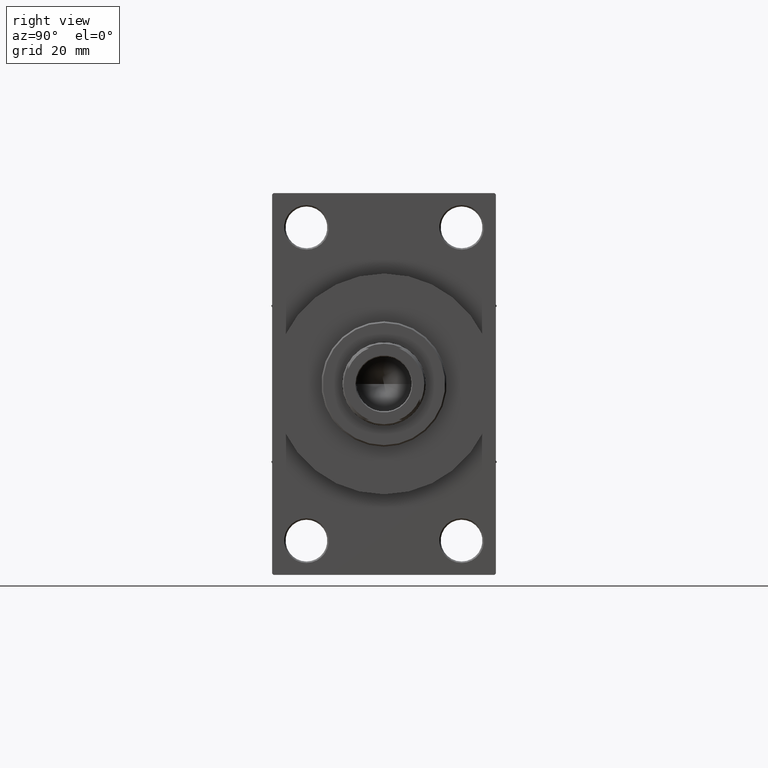
[diagram: clean part render]
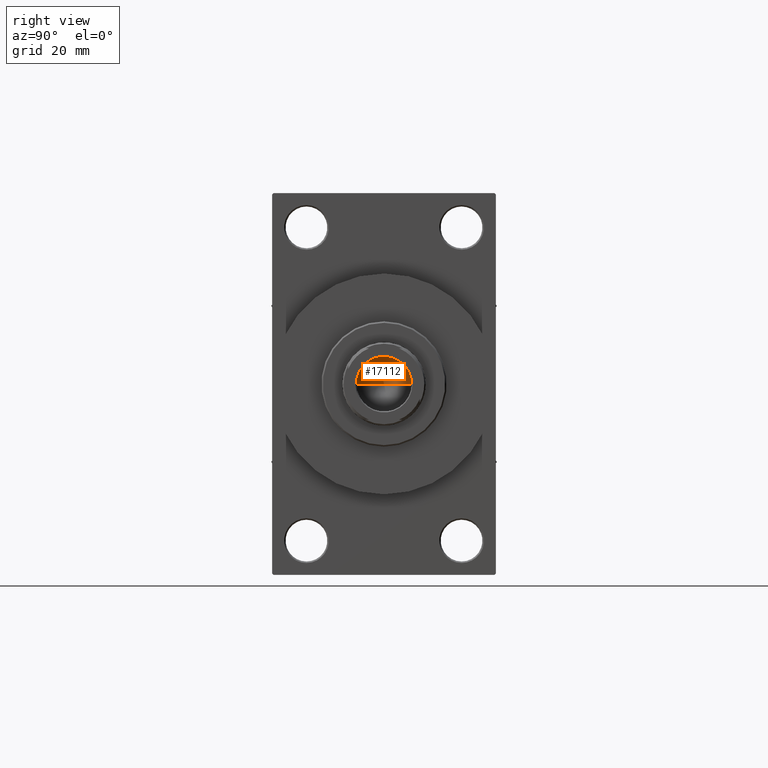
[diagram: same view with one face highlighted and labeled with its STEP entity id]
A machine part, right view. The second image highlights one B-rep face of the part: STEP entity #17112.
In plain terms, the highlighted conical surface has half-angle 59 deg.
Its self-contained STEP definition (entity closure, byte-faithful):
#1351 = CARTESIAN_POINT ( 'NONE',  ( -9.249999999999992895, 1.132798289211300712E-15, 107.0000000000000142 ) ) ;
#1809 = VERTEX_POINT ( 'NONE', #44751 ) ;
#2831 = CARTESIAN_POINT ( 'NONE',  ( 0.000000000000000000, 0.000000000000000000, 107.0000000000000142 ) ) ;
#4941 = LINE ( 'NONE', #1351, #17944 ) ;
#5274 = AXIS2_PLACEMENT_3D ( 'NONE', #2831, #31483, #5683 ) ;
#5683 = DIRECTION ( 'NONE',  ( 1.000000000000000000, 0.000000000000000000, 0.000000000000000000 ) ) ;
#8425 = VERTEX_POINT ( 'NONE', #12445 ) ;
#9953 = CARTESIAN_POINT ( 'NONE',  ( 9.249999999999992895, 0.000000000000000000, 107.0000000000000142 ) ) ;
#10556 = CIRCLE ( 'NONE', #25040, 9.249999999999992895 ) ;
#12445 = CARTESIAN_POINT ( 'NONE',  ( -9.249999999999992895, 1.132798289211300712E-15, 107.0000000000000142 ) ) ;
#13195 = ORIENTED_EDGE ( 'NONE', *, *, #16223, .F. ) ;
#16223 = EDGE_CURVE ( 'NONE', #41187, #1809, #46025, .T. ) ;
#16914 = FACE_OUTER_BOUND ( 'NONE', #33683, .T. ) ;
#17112 = ADVANCED_FACE ( 'NONE', ( #16914 ), #46413, .F. ) ;
#17944 = VECTOR ( 'NONE', #26894, 1000.000000000000000 ) ;
#18262 = CARTESIAN_POINT ( 'NONE',  ( -9.769621978240258809E-15, 0.000000000000000000, 101.4420392739950785 ) ) ;
#20501 = EDGE_CURVE ( 'NONE', #8425, #1809, #10556, .T. ) ;
#24024 = CARTESIAN_POINT ( 'NONE',  ( 0.000000000000000000, 0.000000000000000000, 107.0000000000000142 ) ) ;
#24525 = DIRECTION ( 'NONE',  ( 0.8571673007021117785, 0.000000000000000000, 0.5150380749100550437 ) ) ;
#25040 = AXIS2_PLACEMENT_3D ( 'NONE', #24024, #28081, #35707 ) ;
#26894 = DIRECTION ( 'NONE',  ( -0.8571673007021117785, 1.049727191138617956E-16, 0.5150380749100550437 ) ) ;
#28081 = DIRECTION ( 'NONE',  ( -0.000000000000000000, -0.000000000000000000, 1.000000000000000000 ) ) ;
#30948 = ORIENTED_EDGE ( 'NONE', *, *, #40144, .T. ) ;
#31483 = DIRECTION ( 'NONE',  ( -0.000000000000000000, -0.000000000000000000, 1.000000000000000000 ) ) ;
#32663 = VECTOR ( 'NONE', #24525, 1000.000000000000000 ) ;
#33683 = EDGE_LOOP ( 'NONE', ( #13195, #30948, #43510 ) ) ;
#35707 = DIRECTION ( 'NONE',  ( 1.000000000000000000, 0.000000000000000000, 0.000000000000000000 ) ) ;
#40144 = EDGE_CURVE ( 'NONE', #41187, #8425, #4941, .T. ) ;
#41187 = VERTEX_POINT ( 'NONE', #18262 ) ;
#43510 = ORIENTED_EDGE ( 'NONE', *, *, #20501, .T. ) ;
#44751 = CARTESIAN_POINT ( 'NONE',  ( 9.249999999999992895, 0.000000000000000000, 107.0000000000000142 ) ) ;
#46025 = LINE ( 'NONE', #9953, #32663 ) ;
#46413 = CONICAL_SURFACE ( 'NONE', #5274, 9.249999999999992895, 1.029744258676653423 ) ;